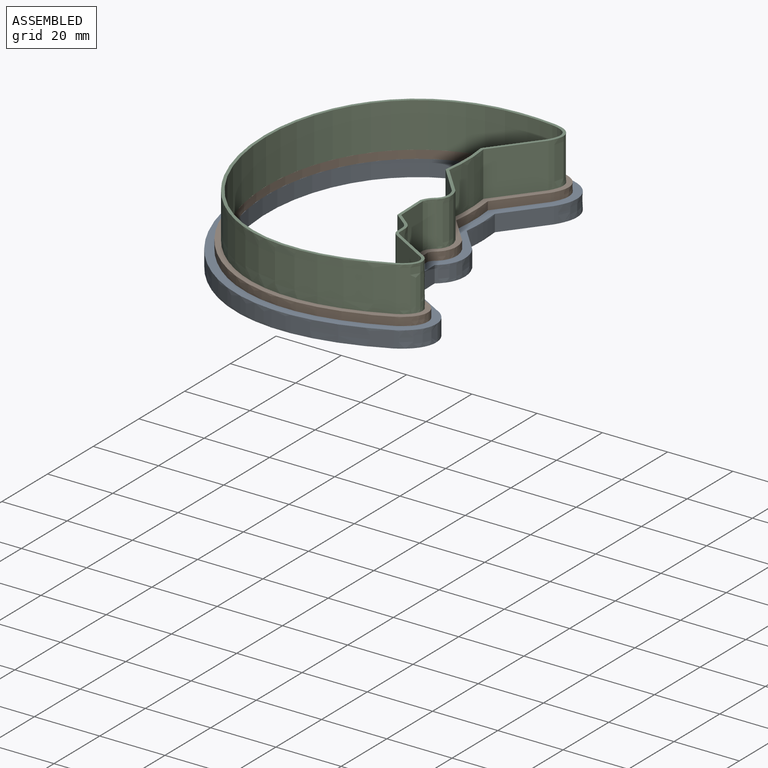
[diagram: assembled view]
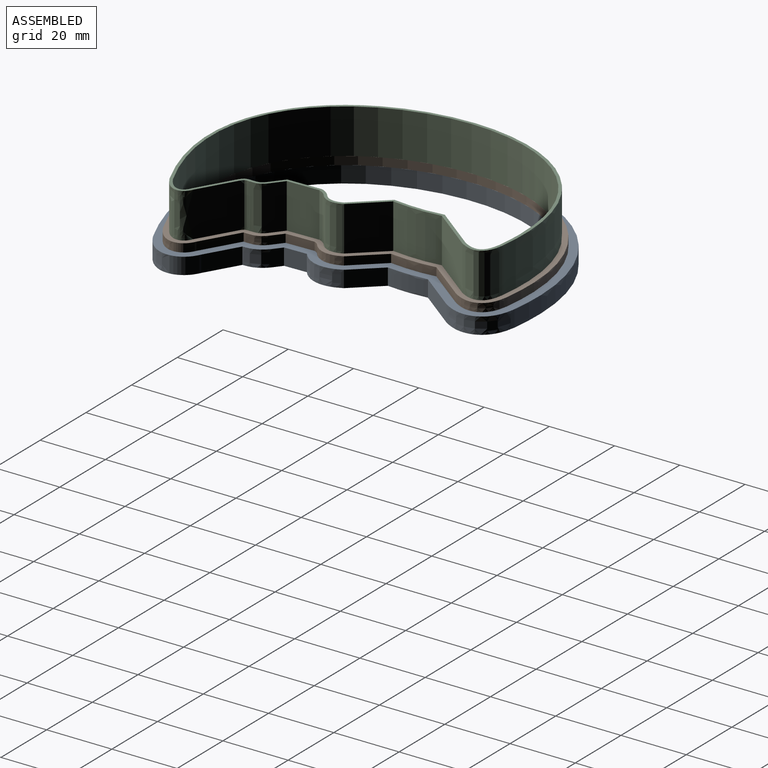
[diagram: assembled view, second angle]
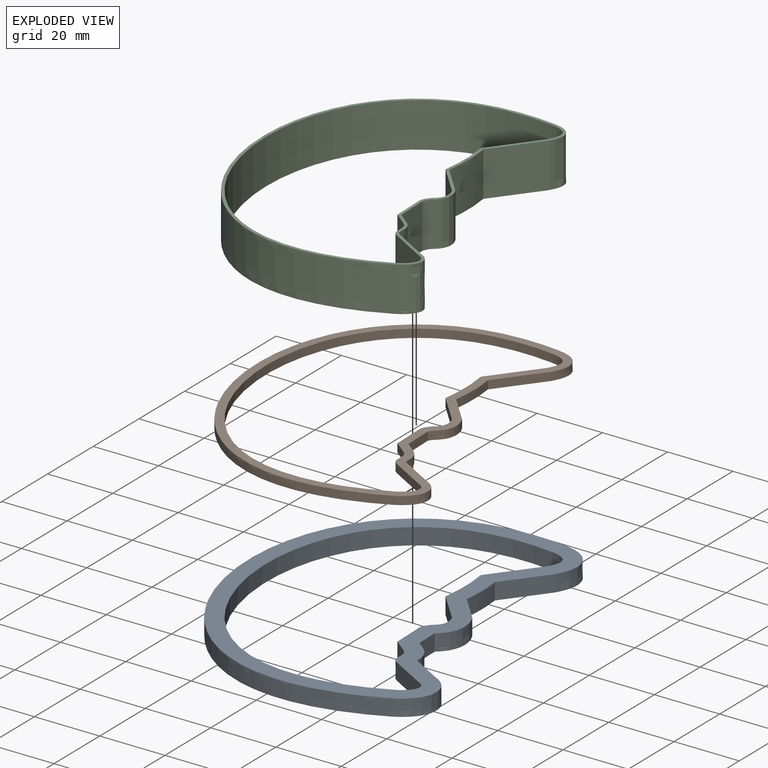
[diagram: exploded view]
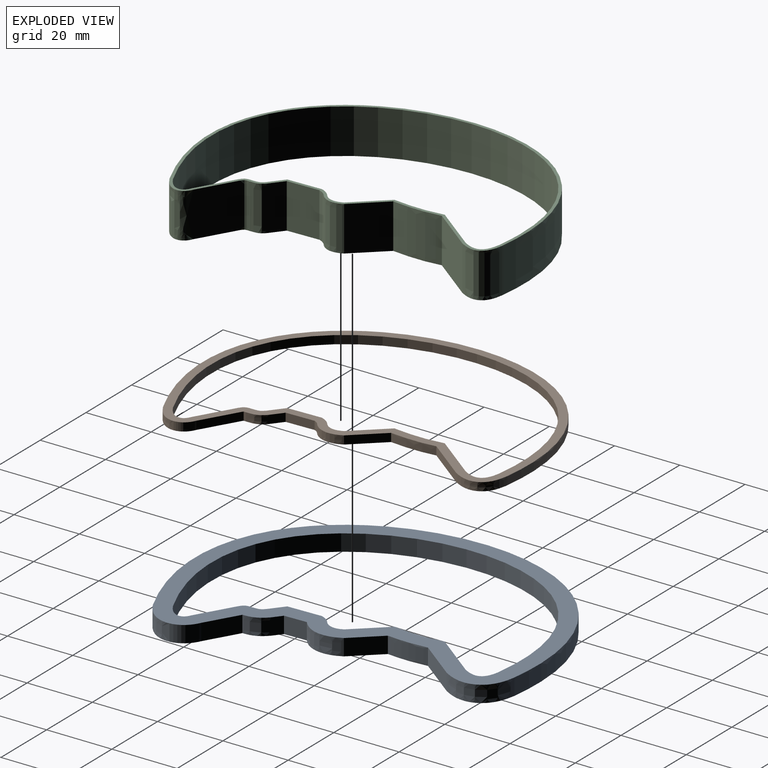
[diagram: exploded view, second angle]
ASSEMBLY  parts=3 mates=2
PART A: 27 faces, bbox 97.9x126.3x7.1 mm
  f0: plane 126.31x97.9mm, normal (0,0,1), area 1593mm2, adj f2,f3,f4,f5,f6,f7,f8,f9
  f1: plane 126.31x97.9mm, normal (0,0,-1), area 1593mm2, adj f2,f3,f4,f5,f6,f7,f8,f9
  f2: extruded ~107.22x77.2mm, area 1034.6mm2, adj f0,f1,f3,f13
  f3: extruded ~16.07x6.66mm, area 105.9mm2, adj f0,f1,f2,f4
  f4: plane 9.86x5.72mm, normal (0.5,0.86,0), area 57.9mm2, adj f0,f1,f3,f5
  f5: extruded ~6.85x5.08mm, area 39.3mm2, adj f0,f1,f4,f6
  f6: plane 5.08x2.56mm, normal (0.62,0.78,0), area 16.6mm2, adj f0,f1,f5,f7
  f7: plane 6.87x5.08mm, normal (1,0.03,0), area 34.9mm2, adj f0,f1,f6,f8
  f8: extruded ~5.08x0.05mm, area 0.3mm2, adj f0,f1,f7,f9
  f9: extruded ~12.99x5.08mm, area 73.7mm2, adj f0,f1,f8,f10
  f10: plane 8.25x7.48mm, normal (0.74,0.67,0), area 56.5mm2, adj f0,f1,f9,f11
  f11: extruded ~12.29x5.08mm, area 62.6mm2, adj f0,f1,f10,f12
  f12: plane 12.35x9.48mm, normal (0.79,-0.61,0), area 79.1mm2, adj f0,f1,f11,f13
  f13: extruded ~15.61x9.52mm, area 109.7mm2, adj f0,f1,f2,f12
  f14: extruded ~97.06x69.76mm, area 937.4mm2, adj f0,f1,f15,f26
  f15: extruded ~7.01x5.08mm, area 49.2mm2, adj f0,f1,f14,f16
  f16: plane 11.26x6.54mm, normal (-0.5,-0.86,0), area 66.1mm2, adj f0,f1,f15,f17
  f17: extruded ~5.08x3.09mm, area 18.4mm2, adj f0,f1,f16,f18
  f18: extruded ~5.08x3.64mm, area 20.4mm2, adj f0,f1,f17,f19
  f19: plane 5.08x4.27mm, normal (-0.62,-0.78,0), area 27.7mm2, adj f0,f1,f18,f20
  f20: plane 10.38x5.08mm, normal (-1,-0.03,0), area 52.8mm2, adj f0,f1,f19,f21
  f21: extruded ~5.08x3.2mm, area 20.1mm2, adj f0,f1,f20,f22
  f22: extruded ~5.96x5.08mm, area 33.7mm2, adj f0,f1,f21,f23
  f23: plane 9.42x8.54mm, normal (-0.74,-0.67,0), area 64.6mm2, adj f0,f1,f22,f24
  f24: extruded ~15.44x5.08mm, area 78.7mm2, adj f0,f1,f23,f25
  f25: plane 13.79x10.59mm, normal (-0.79,0.61,0), area 88.3mm2, adj f0,f1,f24,f26
  f26: extruded ~7.71x5.15mm, area 57.1mm2, adj f0,f1,f14,f25
PART B: 29 faces, bbox 94.8x125.7x3.9 mm
  f0: plane 125.7x94.75mm, normal (0,0,1), area 777mm2, adj f2,f3,f4,f5,f6,f7,f8,f9
  f1: plane 125.7x94.75mm, normal (0,0,-1), area 777mm2, adj f2,f3,f4,f5,f6,f7,f8,f9
  f2: extruded ~2.54x0.25mm, area 0.8mm2, adj f0,f1,f5,f6
  f3: extruded ~102.14x73.48mm, area 493mm2, adj f0,f1,f4,f15
  f4: extruded ~11.55x5.3mm, area 38.8mm2, adj f0,f1,f3,f5
  f5: plane 11x6.39mm, normal (0.5,0.86,0), area 32.3mm2, adj f0,f1,f2,f4
  f6: extruded ~2.54x0.73mm, area 1.8mm2, adj f0,f1,f2,f7
  f7: extruded ~5.6x2.54mm, area 15.9mm2, adj f0,f1,f6,f8
  f8: plane 3.41x2.71mm, normal (0.62,0.78,0), area 11.1mm2, adj f0,f1,f7,f9
  f9: plane 8.73x2.54mm, normal (1,0.03,0), area 22.2mm2, adj f0,f1,f8,f10
  f10: extruded ~2.54x1.56mm, area 5mm2, adj f0,f1,f9,f11
  f11: extruded ~9.44x2.79mm, area 26.8mm2, adj f0,f1,f10,f12
  f12: plane 8.83x8.01mm, normal (0.74,0.67,0), area 30.3mm2, adj f0,f1,f11,f13
  f13: extruded ~13.87x2.54mm, area 35.3mm2, adj f0,f1,f12,f14
  f14: plane 13.06x10.03mm, normal (0.79,-0.61,0), area 41.8mm2, adj f0,f1,f13,f15
  f15: extruded ~11.66x7.33mm, area 41.6mm2, adj f0,f1,f3,f14
  f16: extruded ~97.06x69.76mm, area 468.7mm2, adj f0,f1,f17,f28
  f17: extruded ~7.01x3.93mm, area 24.6mm2, adj f0,f1,f16,f18
  f18: plane 11.26x6.54mm, normal (-0.5,-0.86,0), area 33.1mm2, adj f0,f1,f17,f19
  f19: extruded ~3.09x2.54mm, area 9.2mm2, adj f0,f1,f18,f20
  f20: extruded ~3.64x2.54mm, area 10.2mm2, adj f0,f1,f19,f21
  f21: plane 4.27x3.38mm, normal (-0.62,-0.78,0), area 13.8mm2, adj f0,f1,f20,f22
  f22: plane 10.38x2.54mm, normal (-1,-0.03,0), area 26.4mm2, adj f0,f1,f21,f23
  f23: extruded ~3.2x2.54mm, area 10mm2, adj f0,f1,f22,f24
  f24: extruded ~5.96x2.54mm, area 16.9mm2, adj f0,f1,f23,f25
  f25: plane 9.42x8.54mm, normal (-0.74,-0.67,0), area 32.3mm2, adj f0,f1,f24,f26
  f26: extruded ~15.44x2.54mm, area 39.4mm2, adj f0,f1,f25,f27
  f27: plane 13.79x10.59mm, normal (-0.79,0.61,0), area 44.1mm2, adj f0,f1,f26,f28
  f28: extruded ~7.71x5.15mm, area 28.5mm2, adj f0,f1,f16,f27
PART C: 28 faces, bbox 93.3x125.9x15.3 mm
  f0: plane 125.87x93.27mm, normal (0,0,1), area 267.2mm2, adj f2,f3,f4,f5,f6,f7,f8,f9
  f1: plane 125.87x93.27mm, normal (0,0,-1), area 267.2mm2, adj f2,f3,f4,f5,f6,f7,f8,f9
  f2: extruded ~98.84x71.06mm, area 2576.8mm2, adj f0,f1,f3,f14
  f3: extruded ~13.72x8.6mm, area 159.9mm2, adj f0,f1,f2,f4
  f4: plane 13.72x11.17mm, normal (0.5,0.86,0), area 177.1mm2, adj f0,f1,f3,f5
  f5: extruded ~13.72x2.33mm, area 37.3mm2, adj f0,f1,f4,f6
  f6: extruded ~13.72x4.33mm, area 65.6mm2, adj f0,f1,f5,f7
  f7: plane 13.72x3.97mm, normal (0.62,0.78,0), area 69.5mm2, adj f0,f1,f6,f8
  f8: plane 13.72x9.82mm, normal (1,0.03,0), area 134.7mm2, adj f0,f1,f7,f9
  f9: extruded ~13.72x2.61mm, area 44.6mm2, adj f0,f1,f8,f10
  f10: extruded ~13.72x7.18mm, area 109.8mm2, adj f0,f1,f9,f11
  f11: plane 13.72x9.21mm, normal (0.74,0.67,0), area 170.6mm2, adj f0,f1,f10,f12
  f12: extruded ~14.89x13.72mm, area 205mm2, adj f0,f1,f11,f13
  f13: plane 13.72x13.53mm, normal (0.79,-0.61,0), area 234mm2, adj f0,f1,f12,f14
  f14: extruded ~13.72x9.09mm, area 178.8mm2, adj f0,f1,f2,f13
  f15: extruded ~97.06x69.76mm, area 2530.9mm2, adj f0,f1,f16,f27
  f16: extruded ~13.72x7.01mm, area 133mm2, adj f0,f1,f15,f17
  f17: plane 13.72x11.26mm, normal (-0.5,-0.86,0), area 178.6mm2, adj f0,f1,f16,f18
  f18: extruded ~13.72x3.09mm, area 49.6mm2, adj f0,f1,f17,f19
  f19: extruded ~13.72x3.64mm, area 55mm2, adj f0,f1,f18,f20
  f20: plane 13.72x4.27mm, normal (-0.62,-0.78,0), area 74.7mm2, adj f0,f1,f19,f21
  f21: plane 13.72x10.38mm, normal (-1,-0.03,0), area 142.4mm2, adj f0,f1,f20,f22
  f22: extruded ~13.72x3.2mm, area 54.2mm2, adj f0,f1,f21,f23
  f23: extruded ~13.72x5.96mm, area 91mm2, adj f0,f1,f22,f24
  f24: plane 13.72x9.42mm, normal (-0.74,-0.67,0), area 174.4mm2, adj f0,f1,f23,f25
  f25: extruded ~15.44x13.72mm, area 212.5mm2, adj f0,f1,f24,f26
  f26: plane 13.79x13.72mm, normal (-0.79,0.61,0), area 238.4mm2, adj f0,f1,f25,f27
  f27: extruded ~13.72x7.71mm, area 154.1mm2, adj f0,f1,f15,f26
PLACE A at identity
PLACE B t=(150.74,15.52,5.08)mm
PLACE C t=(69.81,19.33,7.62)mm
MATE fastened C.f1 <-> B.f0  axis (0,0,1) through (72.34,25.2,7.62)mm
MATE fastened B.f1 <-> A.f0  axis (0,0,1) through (72.34,25.2,5.08)mm
